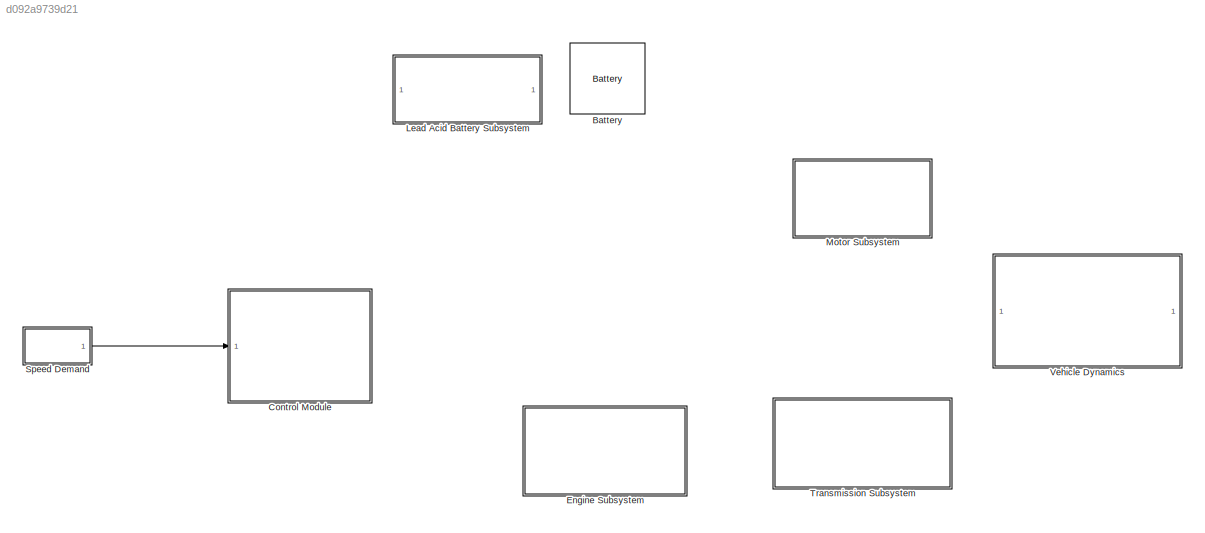
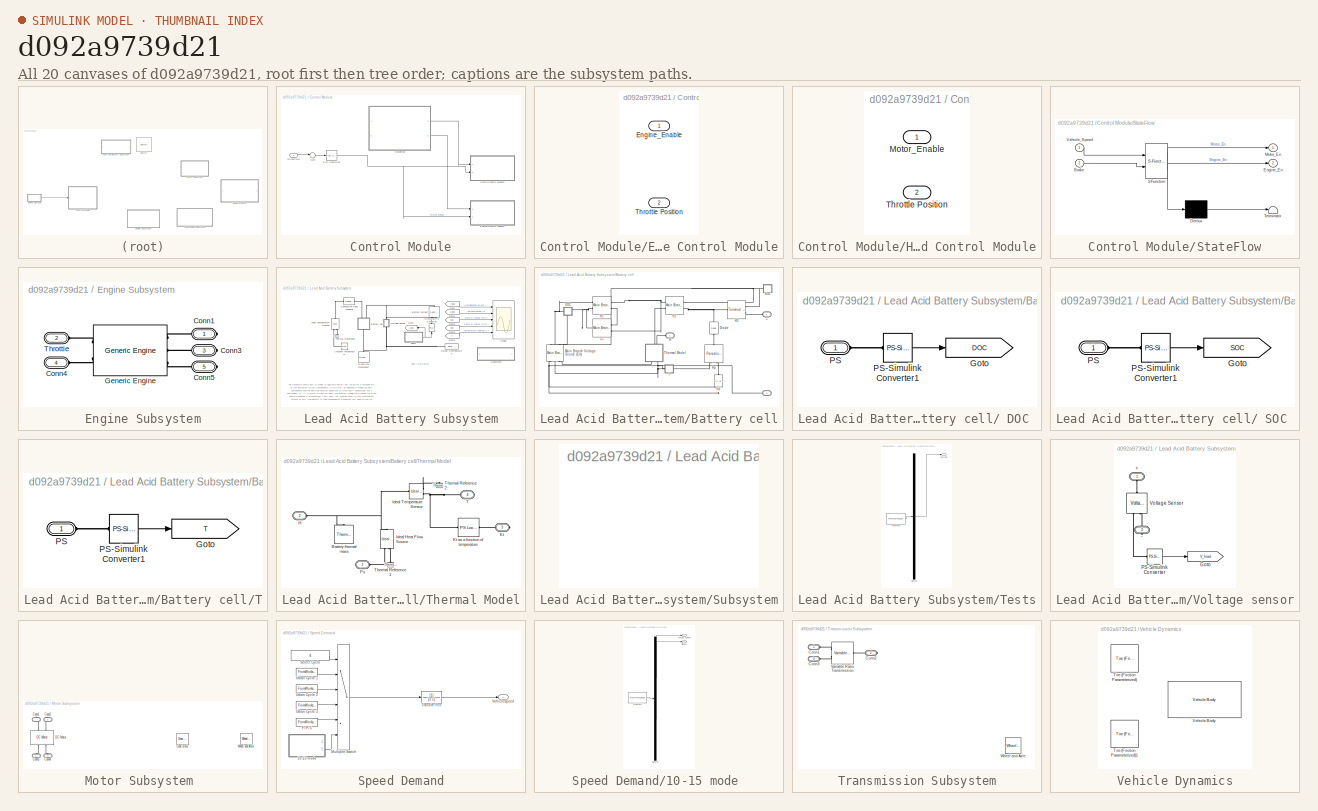
[diagram: thumbnail index - all 20 canvases of the model, root first then tree order]
MODEL slx_d092a9739d21
KIND model
BLOCK [Reference] Battery  REF=electricdrivelib/Extra Sources/Battery
  BatType = Nickel-Metal-Hydride
  Batt_Tr = 30
  Dis_Char = off
  Dis_rate = 1.3
  FullV = 1.4136
  MaxQ = 7
  NomQ = 6.5
  NomV = 1.2
  Normal_OP = 6.25
  Ports = [0, 1, 0, 0, 0, 2]
  PresetModel = on
  R = 0.0018462
  SOC = 100
  ShowDetailedParameters = off
  SourceBlock = electricdrivelib/Extra Sources/Battery
  SourceType = Battery
  Units = Time
  current = [6.5 13 32.5]
  expZone = [1.3017         1.3]
BLOCK [SubSystem] Control Module
  FunctionWithSeparateData = off
  MaskHideContents = off
  MinAlgLoopOccurrences = off
  Opaque = off
  Ports = [1]
  PropExecContextOutsideSubsystem = off
  RTWSystemCode = Auto
  RequestExecContextInheritance = off
BLOCK [Inport] Control Module/DriveCycle
  IconDisplay = Port number
BLOCK [SubSystem] Control Module/Engine Control Module
  FunctionWithSeparateData = off
  MaskHideContents = off
  MinAlgLoopOccurrences = off
  Opaque = off
  Ports = [2]
  PropExecContextOutsideSubsystem = off
  RTWSystemCode = Auto
  RequestExecContextInheritance = off
BLOCK [Inport] Control Module/Engine Control Module/Engine_Enable
  IconDisplay = Port number
BLOCK [Inport] Control Module/Engine Control Module/Throttle Position
  IconDisplay = Port number
  Port = 2
BLOCK [SubSystem] Control Module/Hybrid Control Module
  FunctionWithSeparateData = off
  MaskHideContents = off
  MinAlgLoopOccurrences = off
  Opaque = off
  Ports = [2]
  PropExecContextOutsideSubsystem = off
  RTWSystemCode = Auto
  RequestExecContextInheritance = off
BLOCK [Inport] Control Module/Hybrid Control Module/Motor_Enable
  IconDisplay = Port number
BLOCK [Inport] Control Module/Hybrid Control Module/Throttle Position
  IconDisplay = Port number
  Port = 2
BLOCK [Reference] Control Module/PID Controller  REF=simulink/Continuous/PID Controller
  AntiWindupMode = none
  Controller = PID
  D = 0
  DOutDataTypeStr = Inherit: Inherit via internal rule
  DOutMax = []
  DOutMin = []
  DParamDataTypeStr = Inherit: Inherit via internal rule
  DParamMax = []
  DParamMin = []
  ExternalReset = none
  FilterContinuousStateAttributes = ''
  FilterMethod = Forward Euler
  FilterOutDataTypeStr = Inherit: Inherit via internal rule
  FilterOutMax = []
  FilterOutMin = []
  FilterRTWStateStorageClass = Auto
  FilterStateMustResolveToSignalObject = off
  Form = Parallel
  I = 1
  IOutDataTypeStr = Inherit: Inherit via internal rule
  IOutMax = []
  IOutMin = []
  IParamDataTypeStr = Inherit: Inherit via internal rule
  IParamMax = []
  IParamMin = []
  IgnoreLimit = off
  InitialConditionForFilter = 0
  InitialConditionForIntegrator = 0
  InitialConditionSource = internal
  IntegratorContinuousStateAttributes = ''
  IntegratorMethod = Forward Euler
  IntegratorOutDataTypeStr = Inherit: Inherit via internal rule
  IntegratorOutMax = []
  IntegratorOutMin = []
  IntegratorRTWStateStorageClass = Auto
  IntegratorStateMustResolveToSignalObject = off
  Kb = 1
  KbOutDataTypeStr = Inherit: Inherit via internal rule
  KbOutMax = []
  KbOutMin = []
  KbParamDataTypeStr = Inherit: Inherit via internal rule
  KbParamMax = []
  KbParamMin = []
  Kt = 1
  KtOutDataTypeStr = Inherit: Inherit via internal rule
  KtOutMax = []
  KtOutMin = []
  KtParamDataTypeStr = Inherit: Inherit via internal rule
  KtParamMax = []
  KtParamMin = []
  LimitOutput = off
  LinearizeAsGain = on
  LockScale = off
  LowerSaturationLimit = -inf
  N = 100
  NOutDataTypeStr = Inherit: Inherit via internal rule
  NOutMax = []
  NOutMin = []
  NParamDataTypeStr = Inherit: Inherit via internal rule
  NParamMax = []
  NParamMin = []
  P = 1
  POutDataTypeStr = Inherit: Inherit via internal rule
  POutMax = []
  POutMin = []
  PParamDataTypeStr = Inherit: Inherit via internal rule
  PParamMax = []
  PParamMin = []
  Ports = [1, 1]
  RndMeth = Floor
  SampleTime = 1
  SaturateOnIntegerOverflow = off
  SaturationOutDataTypeStr = Inherit: Same as input
  SaturationOutMax = []
  SaturationOutMin = []
  SourceBlock = simulink/Continuous/PID Controller
  SourceType = PID 1dof
  SumAccumDataTypeStr = Inherit: Inherit via internal rule
  SumDAccumDataTypeStr = Inherit: Inherit via internal rule
  SumDOutDataTypeStr = Inherit: Inherit via internal rule
  SumDOutMax = []
  SumDOutMin = []
  SumI1AccumDataTypeStr = Inherit: Inherit via internal rule
  SumI1OutDataTypeStr = Inherit: Inherit via internal rule
  SumI1OutMax = []
  SumI1OutMin = []
  SumI2AccumDataTypeStr = Inherit: Inherit via internal rule
  SumI2OutDataTypeStr = Inherit: Inherit via internal rule
  SumI2OutMax = []
  SumI2OutMin = []
  SumI3AccumDataTypeStr = Inherit: Inherit via internal rule
  SumI3OutDataTypeStr = Inherit: Inherit via internal rule
  SumI3OutMax = []
  SumI3OutMin = []
  SumOutDataTypeStr = Inherit: Inherit via internal rule
  SumOutMax = []
  SumOutMin = []
  TimeDomain = Continuous-time
  TrackingMode = off
  UpperSaturationLimit = inf
  ZeroCross = on
BLOCK [SubSystem] Control Module/StateFlow
  ErrorFcn = Stateflow.Translate.translate
  FunctionWithSeparateData = off
  MaskHideContents = off
  MinAlgLoopOccurrences = off
  Opaque = off
  PermitHierarchicalResolution = ExplicitOnly
  Ports = [2, 2]
  PropExecContextOutsideSubsystem = off
  RTWSystemCode = Auto
  RequestExecContextInheritance = off
  SFBlockType = Chart
  TreatAsAtomicUnit = on
BLOCK [Demux] Control Module/StateFlow/ Demux 
  Outputs = 1
  Ports = [1, 1]
BLOCK [S-Function] Control Module/StateFlow/ SFunction 
  EnableBusSupport = off
  FunctionName = sf_sfun
  PortCounts = [2 3]
  Ports = [2, 3]
  Tag = Stateflow S-Function System_2nd_HybridMotorcycle_02252014 1
BLOCK [Terminator] Control Module/StateFlow/ Terminator 
BLOCK [Inport] Control Module/StateFlow/Brake
  IconDisplay = Port number
  Port = 2
BLOCK [Outport] Control Module/StateFlow/Engine_En
  IconDisplay = Port number
  Port = 2
BLOCK [Outport] Control Module/StateFlow/Motor_En
  IconDisplay = Port number
BLOCK [Inport] Control Module/StateFlow/Vehicle_Speed
  IconDisplay = Port number
BLOCK [Sum] Control Module/Sum
  IconShape = round
  InputSameDT = off
  Inputs = |++
  OutDataTypeStr = Inherit: Inherit via internal rule
  Ports = [2, 1]
  SaturateOnIntegerOverflow = off
BLOCK [SubSystem] Engine Subsystem
  FunctionWithSeparateData = off
  MaskHideContents = off
  MinAlgLoopOccurrences = off
  Opaque = off
  Ports = [0, 0, 0, 0, 0, 2, 3]
  PropExecContextOutsideSubsystem = off
  RTWSystemCode = Auto
  RequestExecContextInheritance = off
BLOCK [PMIOPort] Engine Subsystem/Conn1
  Port = 1
  Side = Right
BLOCK [PMIOPort] Engine Subsystem/Conn3
  Port = 3
  Side = Right
BLOCK [PMIOPort] Engine Subsystem/Conn4
  Port = 4
  Side = Left
BLOCK [PMIOPort] Engine Subsystem/Conn5
  Port = 5
  Side = Right
BLOCK [Reference] Engine Subsystem/Generic Engine  REF=sdl_lib/Engines/Generic Engine
  ClassName = generic_engine
  ComponentPath = sdl.engines.generic_engine
  ComponentVariantNames = generic_engine
  ComponentVariants = sdl.engines.generic_engine
  LocalVarLogging = []
  P_max = 1.5e+5
  P_max_unit = W
  Ports = [0, 0, 0, 0, 0, 2, 3]
  SchemaVersion = 1
  SourceBlock = sdl_lib/Engines/Generic Engine
  SourceFile = sdl.engines.generic_engine
  SourceType = Generic Engine
  T0 = 0
  T0_unit = 1
  bmep_tab = [ 0 250 500 625 750 1000 1.15e+3 1.25e+3 ]
  bmep_tab_unit = kPa
  bsfc_tab = [ 410 380 300 280 270 290 320 380; 410 370 290 270 260 270 285 320; 415 380 290 275 265 270 270 300; 420 390 310 290 285 280 280 285; 430 410 340 320 310 300 310 320; 450 430 370 340 330 330 350 380 ]
  bsfc_tab_unit = g/hr/kW
  displaced_volume = 400
  displaced_volume_unit = cm^3
  engine_type = 1
  engine_type_unit = 1
  fc_interp_method = 1
  fc_interp_method_unit = 1
  fc_model = 1
  fc_model_unit = 1
  fc_per_rev = 25
  fc_per_rev_unit = mg/rev
  fc_tab = [ 0.5 0.9 1.4 1.6 1.9 2.7 3.4 4.4; 1 1.7 2.7 3.1 3.6 5 6 7.4; 1.4 2.7 4 4.8 5.6 7.5 8.5 10.5; 2 3.6 5.8 6.7 8 10.4 11.7 13.3; 2.5 4.8 7.9 9.4 10.8 14 16.2 18.6; 3.1 6 10.3 11.9 13.8 18.4 22 26.5 ]
  fc_tab_unit = g/s
  fc_trq_tab = [ 0 80 160 200 240 320 360 400 ]
  fc_trq_tab_unit = N*m
  fc_w_tab = [ 1000 2e+3 3e+3 4e+3 5e+3 6e+3 ]
  fc_w_tab_unit = rpm
  idle_speed = 0
  idle_speed_reference = 1000
  idle_speed_reference_unit = rpm
  idle_speed_unit = 1
  idle_w_thr = 1
  idle_w_thr_unit = rpm
  inertia = 1
  inertia_unit = kg*m^2
  initial_velocity = 800
  initial_velocity_unit = rpm
  interp_method = 1
  interp_method_unit = 1
  model_inertia = 0
  model_inertia_unit = 1
  model_parameterization = 1
  model_parameterization_unit = 1
  model_time_constant = 0
  model_time_constant_unit = 1
  pwr_tab = [ 2e+4 4e+4 7.8e+4 1.2e+5 1.45e+5 1.48e+5 1.25e+5 6e+4 ]
  pwr_tab_unit = W
  rev_per_cycle = 2
  rev_per_cycle_unit = 1
  tau_controller = 1
  tau_controller_unit = s
  time_constant = 0.2
  time_constant_unit = s
  trq_tab = [ 380 380 380 380 350 280 200 80 ]
  trq_tab_unit = N*m
  w_P_max = 4.5e+3
  w_P_max_unit = rpm
  w_max = 6e+3
  w_max_unit = rpm
  w_min = 500
  w_min_unit = rpm
  w_tab = [ 500 1000 2e+3 3e+3 4e+3 5e+3 6e+3 7e+3 ]
  w_tab_unit = rpm
  w_thr = 100
  w_thr_unit = rpm
BLOCK [PMIOPort] Engine Subsystem/Throttle
  Port = 2
  Side = Left
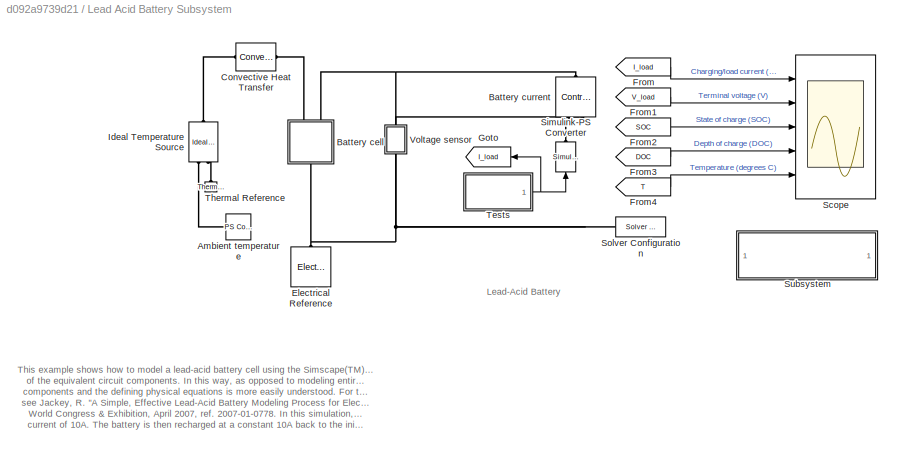
BLOCK [SubSystem] Lead Acid Battery Subsystem
  FunctionWithSeparateData = off
  MaskHideContents = off
  MinAlgLoopOccurrences = off
  Opaque = off
  Ports = []
  PropExecContextOutsideSubsystem = off
  RTWSystemCode = Auto
  RequestExecContextInheritance = off
BLOCK [Reference] Lead Acid Battery Subsystem/Ambient temperature  REF=fl_lib/Physical Signals/Sources/PS Constant
  ClassName = ps_constant
  ComponentPath = foundation.physical_signal.sources.constant
  ComponentVariantNames = constant
  ComponentVariants = foundation.physical_signal.sources.constant
  LocalVarLogging = []
  Ports = [0, 0, 0, 0, 0, 0, 1]
  SchemaVersion = 1
  SourceBlock = fl_lib/Physical Signals/Sources/PS Constant
  SourceFile = foundation.physical_signal.sources.constant
  SourceType = PS Constant
  constant = 273+25
  constant_unit = 1
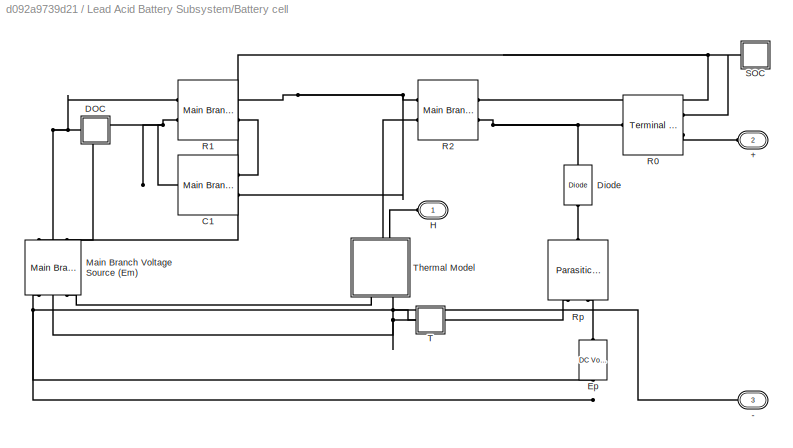
BLOCK [SubSystem] Lead Acid Battery Subsystem/Battery cell
  FunctionWithSeparateData = off
  MaskHideContents = off
  MinAlgLoopOccurrences = off
  Opaque = off
  Ports = [0, 0, 0, 0, 0, 2, 1]
  PropExecContextOutsideSubsystem = off
  RTWSystemCode = Auto
  RequestExecContextInheritance = off
BLOCK [SubSystem] Lead Acid Battery Subsystem/Battery cell/ DOC 
  FunctionWithSeparateData = off
  MaskHideContents = off
  MinAlgLoopOccurrences = off
  Opaque = off
  Ports = [0, 0, 0, 0, 0, 1]
  PropExecContextOutsideSubsystem = off
  RTWSystemCode = Auto
  RequestExecContextInheritance = off
BLOCK [Goto] Lead Acid Battery Subsystem/Battery cell/ DOC /Goto
  GotoTag = DOC
  TagVisibility = global
BLOCK [PMIOPort] Lead Acid Battery Subsystem/Battery cell/ DOC /PS
  Port = 1
  Side = Left
BLOCK [Reference] Lead Acid Battery Subsystem/Battery cell/ DOC /PS-Simulink Converter1  REF=nesl_utility/PS-Simulink
Converter
  AffineConversion = off
  Frequencies = []
  LeftPortType = input
  PhysicalDomain = network_engine_domain
  Ports = [0, 1, 0, 0, 0, 1]
  PseudoPeriodic = off
  RightPortType = output
  SourceBlock = nesl_utility/PS-Simulink\nConverter
  SourceType = PS-Simulink\nConverter
  SubClassName = ps_output
  Unit = 1
BLOCK [SubSystem] Lead Acid Battery Subsystem/Battery cell/ SOC 
  FunctionWithSeparateData = off
  MaskHideContents = off
  MinAlgLoopOccurrences = off
  Opaque = off
  Ports = [0, 0, 0, 0, 0, 1]
  PropExecContextOutsideSubsystem = off
  RTWSystemCode = Auto
  RequestExecContextInheritance = off
BLOCK [Goto] Lead Acid Battery Subsystem/Battery cell/ SOC /Goto
  GotoTag = SOC
  TagVisibility = global
BLOCK [PMIOPort] Lead Acid Battery Subsystem/Battery cell/ SOC /PS
  Port = 1
  Side = Left
BLOCK [Reference] Lead Acid Battery Subsystem/Battery cell/ SOC /PS-Simulink Converter1  REF=nesl_utility/PS-Simulink
Converter
  AffineConversion = off
  Frequencies = []
  LeftPortType = input
  PhysicalDomain = network_engine_domain
  Ports = [0, 1, 0, 0, 0, 1]
  PseudoPeriodic = off
  RightPortType = output
  SourceBlock = nesl_utility/PS-Simulink\nConverter
  SourceType = PS-Simulink\nConverter
  SubClassName = ps_output
  Unit = 1
BLOCK [PMIOPort] Lead Acid Battery Subsystem/Battery cell/+
  Port = 2
  Side = Left
  Tag = PMCPort
BLOCK [PMIOPort] Lead Acid Battery Subsystem/Battery cell/-
  Port = 3
  Side = Right
  Tag = PMCPort
BLOCK [Reference] Lead Acid Battery Subsystem/Battery cell/C1  REF=LeadAcidBattery_lib/Main Branch
Capacitance, C1
  ClassName = mbCapacitance
  Cmin = 1e-5
  Cmin_unit = F
  ComponentPath = LeadAcidBattery.C1
  ComponentVariantNames = C1
  ComponentVariants = LeadAcidBattery.C1
  LocalVarDescs = |Current through variable|Voltage across variable|Charge variable
  LocalVarLogging = [0 0 0]
  LocalVarNames = |i|v|Q
  Ports = [0, 0, 0, 0, 0, 2, 1]
  Q_Log = off
  SchemaVersion = 1
  SourceBlock = LeadAcidBattery_lib/Main Branch\nCapacitance, C1
  SourceFile = LeadAcidBattery.C1
  SourceType = Main Branch\nCapacitance, C1
  Tau1 = Tau1
  Tau1_unit = s
  i_Log = off
  v_Log = off
BLOCK [Reference] Lead Acid Battery Subsystem/Battery cell/Diode  REF=fl_lib/Electrical/Electrical Elements/Diode
  ClassName = pwl_diode
  ComponentPath = foundation.electrical.elements.pwl_diode
  ComponentVariantNames = pwl_diode
  ComponentVariants = foundation.electrical.elements.pwl_diode
  Goff = 1e-08
  Goff_unit = 1/Ohm
  LocalVarDescs = |Diode current (A)|Voltage across diode (V)|Power (W)
  LocalVarLogging = [0 0 0]
  LocalVarNames = |current|voltage|power
  Ports = [0, 0, 0, 0, 0, 1, 1]
  Ron = 0.3
  Ron_unit = Ohm
  SchemaVersion = 1
  SourceBlock = fl_lib/Electrical/Electrical Elements/Diode
  SourceFile = foundation.electrical.elements.pwl_diode
  SourceType = Diode
  Vf = 0.6
  Vf_unit = V
  i_Log = off
  v_Log = off
BLOCK [Reference] Lead Acid Battery Subsystem/Battery cell/Ep  REF=fl_lib/Electrical/Electrical Sources/DC Voltage Source
  ClassName = dc_voltage_source
  ComponentPath = foundation.electrical.sources.dc_voltage
  ComponentVariantNames = dc_voltage
  ComponentVariants = foundation.electrical.sources.dc_voltage
  LocalVarDescs = |Current (A)|Voltage (V)|Power (W)
  LocalVarLogging = [0 0 0]
  LocalVarNames = |current|voltage|power
  Ports = [0, 0, 0, 0, 0, 1, 1]
  SchemaVersion = 1
  SourceBlock = fl_lib/Electrical/Electrical Sources/DC Voltage Source
  SourceFile = foundation.electrical.sources.dc_voltage
  SourceType = DC Voltage Source
  i_Log = off
  v0 = Ep
  v0_unit = V
  v_Log = off
BLOCK [PMIOPort] Lead Acid Battery Subsystem/Battery cell/H
  Port = 1
  Side = Left
  Tag = PMCPort
BLOCK [Reference] Lead Acid Battery Subsystem/Battery cell/Main Branch Voltage Source (Em)  REF=LeadAcidBattery_lib/Main Branch Voltage
Source, Em
  C0 = Costar
  C0_unit = s*A
  ClassName = mbVoltageSource
  ComponentPath = LeadAcidBattery.Em
  ComponentVariantNames = Em
  ComponentVariants = LeadAcidBattery.Em
  Em0 = Emo
  Em0_unit = V
  Iavg_Log = off
  Istar = Istar
  Istar_unit = A
  Kc = Kc
  Kc_unit = 1
  Ke = Ke
  Ke_unit = V/K
  LocalVarDescs = |Current through variable|Voltage across variable|usable battery capacity|total battery capacity|battery charge|average current given by (I/(Ts+1))
  LocalVarLogging = [0 0 0 0 0 0]
  LocalVarNames = |i|v|cap_u|cap_t|Q|Iavg
  Ports = [0, 0, 0, 0, 0, 3, 3]
  Qe_Log = off
  Qinit = Qe_init
  Qinit_unit = s*A
  SchemaVersion = 1
  SourceBlock = LeadAcidBattery_lib/Main Branch Voltage\nSource, Em
  SourceFile = LeadAcidBattery.Em
  SourceType = Main Branch Voltage\nSource, Em
  Tau1 = Tau1
  Tau1_unit = s
  delta = delta
  delta_unit = 1
  i_Log = off
  v_Log = off
BLOCK [Reference] Lead Acid Battery Subsystem/Battery cell/R0  REF=LeadAcidBattery_lib/Terminal Resistance,
R0
  A0 = Ao
  A0_unit = 1
  ClassName = terminalResistance
  ComponentPath = LeadAcidBattery.R0
  ComponentVariantNames = R0
  ComponentVariants = LeadAcidBattery.R0
  LocalVarDescs = |Current through variable|Voltage across variable
  LocalVarLogging = [0 0]
  LocalVarNames = |i|v
  Ports = [0, 0, 0, 0, 0, 2, 1]
  R00 = Roo
  R00_unit = Ohm
  SchemaVersion = 1
  SourceBlock = LeadAcidBattery_lib/Terminal Resistance,\nR0
  SourceFile = LeadAcidBattery.R0
  SourceType = Terminal Resistance,\nR0
  i_Log = off
  v_Log = off
BLOCK [Reference] Lead Acid Battery Subsystem/Battery cell/R1  REF=LeadAcidBattery_lib/Main Branch
Resistance, R1
  ClassName = R1
  ComponentPath = LeadAcidBattery.R1
  ComponentVariantNames = R1
  ComponentVariants = LeadAcidBattery.R1
  DOC_min = 1e-006
  DOC_min_unit = 1
  LocalVarDescs = |Current through variable|Voltage across variable
  LocalVarLogging = [0 0]
  LocalVarNames = |i|v
  Ports = [0, 0, 0, 0, 0, 2, 2]
  R10 = R10
  R10_unit = Ohm
  SchemaVersion = 1
  SourceBlock = LeadAcidBattery_lib/Main Branch\nResistance, R1
  SourceFile = LeadAcidBattery.R1
  SourceType = Main Branch\nResistance, R1
  i_Log = off
  v_Log = off
BLOCK [Reference] Lead Acid Battery Subsystem/Battery cell/R2  REF=LeadAcidBattery_lib/Main Branch
Resistance, R2
  A21 = A21
  A21_unit = 1
  A22 = A22
  A22_unit = 1
  ClassName = mbResistance2
  ComponentPath = LeadAcidBattery.R2
  ComponentVariantNames = R2
  ComponentVariants = LeadAcidBattery.R2
  Istar = Istar
  Istar_unit = A
  LocalVarDescs = |Current through variable|Voltage across variable
  LocalVarLogging = [0 0]
  LocalVarNames = |i|v
  Ports = [0, 0, 0, 0, 0, 2, 2]
  R20 = R20
  R20_unit = Ohm
  SchemaVersion = 1
  SourceBlock = LeadAcidBattery_lib/Main Branch\nResistance, R2
  SourceFile = LeadAcidBattery.R2
  SourceType = Main Branch\nResistance, R2
  i_Log = off
  v_Log = off
BLOCK [Reference] Lead Acid Battery Subsystem/Battery cell/Rp  REF=LeadAcidBattery_lib/Parasitic Branch
Resistance, Rp
  Ap = Ap
  Ap_unit = 1
  ClassName = pbResistance
  ComponentPath = LeadAcidBattery.Rp
  ComponentVariantNames = Rp
  ComponentVariants = LeadAcidBattery.Rp
  Gp0 = Gpo
  Gp0_unit = 1/Ohm
  LocalVarDescs = |Current through variable|Voltage across variable|average voltage given by (V/(Ts+1))
  LocalVarLogging = [0 0 0]
  LocalVarNames = |i|v|Vavg
  Ports = [0, 0, 0, 0, 0, 1, 2]
  SchemaVersion = 1
  SourceBlock = LeadAcidBattery_lib/Parasitic Branch\nResistance, Rp
  SourceFile = LeadAcidBattery.Rp
  SourceType = Parasitic Branch\nResistance, Rp
  Tf = theta_f
  Tf_unit = C
  Vp0 = Vpo
  Vp0_unit = V
  i_Log = off
  v_Log = off
BLOCK [SubSystem] Lead Acid Battery Subsystem/Battery cell/T
  FunctionWithSeparateData = off
  MaskHideContents = off
  MinAlgLoopOccurrences = off
  Opaque = off
  Ports = [0, 0, 0, 0, 0, 1]
  PropExecContextOutsideSubsystem = off
  RTWSystemCode = Auto
  RequestExecContextInheritance = off
BLOCK [Goto] Lead Acid Battery Subsystem/Battery cell/T/Goto
  GotoTag = T
  TagVisibility = global
BLOCK [PMIOPort] Lead Acid Battery Subsystem/Battery cell/T/PS
  Port = 1
  Side = Left
BLOCK [Reference] Lead Acid Battery Subsystem/Battery cell/T/PS-Simulink Converter1  REF=nesl_utility/PS-Simulink
Converter
  AffineConversion = on
  Frequencies = []
  LeftPortType = input
  PhysicalDomain = network_engine_domain
  Ports = [0, 1, 0, 0, 0, 1]
  PseudoPeriodic = off
  RightPortType = output
  SourceBlock = nesl_utility/PS-Simulink\nConverter
  SourceType = PS-Simulink\nConverter
  SubClassName = ps_output
  Unit = C
BLOCK [SubSystem] Lead Acid Battery Subsystem/Battery cell/Thermal Model
  FunctionWithSeparateData = off
  MaskHideContents = off
  MinAlgLoopOccurrences = off
  Opaque = off
  Ports = [0, 0, 0, 0, 0, 2, 2]
  PropExecContextOutsideSubsystem = off
  RTWSystemCode = Auto
  RequestExecContextInheritance = off
BLOCK [Reference] Lead Acid Battery Subsystem/Battery cell/Thermal Model/Battery thermal mass  REF=fl_lib/Thermal/Thermal Elements/Thermal Mass
  ClassName = thermal_mass
  ComponentPath = foundation.thermal.elements.mass
  ComponentVariantNames = mass
  ComponentVariants = foundation.thermal.elements.mass
  LocalVarDescs = |Heat flow (J/s)|Mass temperature (K)
  LocalVarLogging = [0 0]
  LocalVarNames = |heat_flow|temperature
  Ports = [0, 0, 0, 0, 0, 1]
  Q_Log = off
  SchemaVersion = 1
  SourceBlock = fl_lib/Thermal/Thermal Elements/Thermal Mass
  SourceFile = foundation.thermal.elements.mass
  SourceType = Thermal Mass
  init_temp = theta_init+273
  init_temp_unit = K
  mass = 1
  mass_unit = kg
  sp_heat = Ctheta
  sp_heat_unit = J/kg/K
BLOCK [PMIOPort] Lead Acid Battery Subsystem/Battery cell/Thermal Model/H
  Port = 2
  Side = Left
  Tag = PMCPort
BLOCK [Reference] Lead Acid Battery Subsystem/Battery cell/Thermal Model/Ideal Heat Flow Source  REF=fl_lib/Thermal/Thermal Sources/Ideal Heat Flow
Source
  ClassName = heat_flow_src
  ComponentPath = foundation.thermal.sources.heat_flow
  ComponentVariantNames = heat_flow
  ComponentVariants = foundation.thermal.sources.heat_flow
  LocalVarDescs = |Heat flow through the source (J/s)|Temperature differential across the source (K)
  LocalVarLogging = [0 0]
  LocalVarNames = |heat_flow|T_differential
  Ports = [0, 0, 0, 0, 0, 1, 2]
  Q_Log = off
  SchemaVersion = 1
  SourceBlock = fl_lib/Thermal/Thermal Sources/Ideal Heat Flow\nSource
  SourceFile = foundation.thermal.sources.heat_flow
  SourceType = Ideal Heat Flow\nSource
  T_Log = off
BLOCK [Reference] Lead Acid Battery Subsystem/Battery cell/Thermal Model/Ideal Temperature Sensor  REF=fl_lib/Thermal/Thermal Sensors/Ideal Temperature
Sensor
  ClassName = sensor_temperature
  ComponentPath = foundation.thermal.sensors.temperature
  ComponentVariantNames = temperature
  ComponentVariants = foundation.thermal.sensors.temperature
  LocalVarDescs = |Qs|Ts
  LocalVarLogging = []
  LocalVarNames = |Qs|Ts
  Ports = [0, 0, 0, 0, 0, 1, 2]
  Qs_Log = off
  SchemaVersion = 1
  SourceBlock = fl_lib/Thermal/Thermal Sensors/Ideal Temperature\nSensor
  SourceFile = foundation.thermal.sensors.temperature
  SourceType = Ideal Temperature\nSensor
  Ts_Log = off
BLOCK [PMIOPort] Lead Acid Battery Subsystem/Battery cell/Thermal Model/Kt
  Port = 3
  Side = Right
  Tag = PMCPort
BLOCK [Reference] Lead Acid Battery Subsystem/Battery cell/Thermal Model/Kt as a function of temperature  REF=fl_lib/Physical Signals/Lookup Tables/PS Lookup Table (1D)
  ClassName = ps_1d_tlu
  ComponentPath = foundation.physical_signal.lookup_tables.one_dimensional
  ComponentVariantNames = one_dimensional
  ComponentVariants = foundation.physical_signal.lookup_tables.one_dimensional
  LocalVarLogging = []
  Ports = [0, 0, 0, 0, 0, 1, 1]
  SchemaVersion = 1
  SourceBlock = fl_lib/Physical Signals/Lookup Tables/PS Lookup Table (1D)
  SourceFile = foundation.physical_signal.lookup_tables.one_dimensional
  SourceType = PS Lookup Table (1D)
  extrap_method = 1
  extrap_method_unit = 1
  interp_method = 1
  interp_method_unit = 1
  x_t = [theta_f, Kt_Temps]+273
  x_t_unit = 1
  y_t = [0 Kt]
  y_t_unit = 1
BLOCK [PMIOPort] Lead Acid Battery Subsystem/Battery cell/Thermal Model/Ps
  Port = 1
  Side = Left
  Tag = PMCPort
BLOCK [PMIOPort] Lead Acid Battery Subsystem/Battery cell/Thermal Model/T
  Port = 4
  Side = Right
  Tag = PMCPort
BLOCK [Reference] Lead Acid Battery Subsystem/Battery cell/Thermal Model/Thermal Reference1  REF=fl_lib/Thermal/Thermal Elements/Thermal Reference
  ClassName = reference_thermal
  ComponentPath = foundation.thermal.elements.reference
  ComponentVariantNames = reference
  ComponentVariants = foundation.thermal.elements.reference
  LocalVarDescs = |Q
  LocalVarLogging = []
  LocalVarNames = |Q
  Ports = [0, 0, 0, 0, 0, 1]
  Q_Log = off
  SchemaVersion = 1
  SourceBlock = fl_lib/Thermal/Thermal Elements/Thermal Reference
  SourceFile = foundation.thermal.elements.reference
  SourceType = Thermal Reference
BLOCK [Reference] Lead Acid Battery Subsystem/Battery cell/Thermal Model/Thermal Reference2  REF=fl_lib/Thermal/Thermal Elements/Thermal Reference
  ClassName = reference_thermal
  ComponentPath = foundation.thermal.elements.reference
  ComponentVariantNames = reference
  ComponentVariants = foundation.thermal.elements.reference
  LocalVarDescs = |Q
  LocalVarLogging = []
  LocalVarNames = |Q
  Ports = [0, 0, 0, 0, 0, 1]
  Q_Log = off
  SchemaVersion = 1
  SourceBlock = fl_lib/Thermal/Thermal Elements/Thermal Reference
  SourceFile = foundation.thermal.elements.reference
  SourceType = Thermal Reference
BLOCK [Reference] Lead Acid Battery Subsystem/Battery current  REF=fl_lib/Electrical/Electrical Sources/Controlled Current
Source
  ClassName = controlled_current_source
  ComponentPath = foundation.electrical.sources.controlled_current
  ComponentVariantNames = controlled_current
  ComponentVariants = foundation.electrical.sources.controlled_current
  LocalVarDescs = |Current (A)|Voltage (V)|Power (W)
  LocalVarLogging = [0 0 0]
  LocalVarNames = |current|voltage|power
  Ports = [0, 0, 0, 0, 0, 1, 2]
  SchemaVersion = 1
  SourceBlock = fl_lib/Electrical/Electrical Sources/Controlled Current\nSource
  SourceFile = foundation.electrical.sources.controlled_current
  SourceType = Controlled Current\nSource
  i_Log = off
  v_Log = off
BLOCK [Reference] Lead Acid Battery Subsystem/Convective Heat Transfer  REF=fl_lib/Thermal/Thermal Elements/Convective Heat
Transfer
  ClassName = conv_heat_transfer
  ComponentPath = foundation.thermal.elements.convection
  ComponentVariantNames = convection
  ComponentVariants = foundation.thermal.elements.convection
  LocalVarDescs = |Heat flow (J/s)|Temperature difference (K)
  LocalVarLogging = [0 0]
  LocalVarNames = |heat_flow|temperature_diff
  Ports = [0, 0, 0, 0, 0, 1, 1]
  Q_Log = off
  SchemaVersion = 1
  SourceBlock = fl_lib/Thermal/Thermal Elements/Convective Heat\nTransfer
  SourceFile = foundation.thermal.elements.convection
  SourceType = Convective Heat\nTransfer
  T_Log = off
  area = Area
  area_unit = m^2
  heat_tr_coeff = Rtheta
  heat_tr_coeff_unit = W/(m^2 * K)
BLOCK [Reference] Lead Acid Battery Subsystem/Electrical Reference  REF=fl_lib/Electrical/Electrical Elements/Electrical Reference
  ClassName = reference_electrical
  ComponentPath = foundation.electrical.elements.reference
  ComponentVariantNames = reference
  ComponentVariants = foundation.electrical.elements.reference
  LocalVarDescs = |i
  LocalVarLogging = []
  LocalVarNames = |i
  Ports = [0, 0, 0, 0, 0, 1]
  SchemaVersion = 1
  SourceBlock = fl_lib/Electrical/Electrical Elements/Electrical Reference
  SourceFile = foundation.electrical.elements.reference
  SourceType = Electrical Reference
  i_Log = off
BLOCK [From] Lead Acid Battery Subsystem/From
  GotoTag = I_load
  TagVisibility = global
BLOCK [From] Lead Acid Battery Subsystem/From1
  GotoTag = V_load
  TagVisibility = global
BLOCK [From] Lead Acid Battery Subsystem/From2
  GotoTag = SOC
  TagVisibility = global
BLOCK [From] Lead Acid Battery Subsystem/From3
  GotoTag = DOC
  TagVisibility = global
BLOCK [From] Lead Acid Battery Subsystem/From4
  GotoTag = T
  TagVisibility = global
BLOCK [Goto] Lead Acid Battery Subsystem/Goto
  GotoTag = I_load
  TagVisibility = global
BLOCK [Reference] Lead Acid Battery Subsystem/Ideal Temperature Source  REF=fl_lib/Thermal/Thermal Sources/Ideal Temperature
Source
  ClassName = temperature_src
  ComponentPath = foundation.thermal.sources.temperature
  ComponentVariantNames = temperature
  ComponentVariants = foundation.thermal.sources.temperature
  LocalVarDescs = |Heat flow rate through the source (J/s)|Temperature differential across the source (K)
  LocalVarLogging = [0 0]
  LocalVarNames = |heat_flow|T_differential
  Ports = [0, 0, 0, 0, 0, 1, 2]
  Q_Log = off
  SchemaVersion = 1
  SourceBlock = fl_lib/Thermal/Thermal Sources/Ideal Temperature\nSource
  SourceFile = foundation.thermal.sources.temperature
  SourceType = Ideal Temperature\nSource
  T_Log = off
BLOCK [Scope] Lead Acid Battery Subsystem/Scope
  DataFormat = StructureWithTime
  Floating = off
  LimitDataPoints = off
  NumInputPorts = 5
  Ports = [5]
  SampleTime = 0
  ShowLegends = off
  TimeRange = 36000
  YMax = 12~3~1~1~40
  YMin = -12~1.5~0~0~20
BLOCK [Reference] Lead Acid Battery Subsystem/Simulink-PS Converter  REF=nesl_utility/Simulink-PS
Converter
  AffineConversion = off
  Frequencies = []
  InputFilterTimeConstant = .001
  InputFiltering = off
  LeftPortType = input
  NoiseDistribution = none
  NoiseParameters = []
  PhysicalDomain = network_engine_domain
  Ports = [1, 0, 0, 0, 0, 0, 1]
  PseudoPeriodic = off
  RightPortType = output
  SimscapeFilterOrder = 1
  SourceBlock = nesl_utility/Simulink-PS\nConverter
  SourceType = Simulink-PS\nConverter
  SubClassName = ps_input
  UdotUserProvided = 0
  Unit = A
BLOCK [Reference] Lead Acid Battery Subsystem/Solver Configuration  REF=nesl_utility/Solver
Configuration
  Accelerate = off
  DelaysMemoryBudget = 1024
  DoDC = off
  DoFixedCost = off
  EnableSwitchedLinearOptims = on
  FrequencyDomain = off
  Harmonics = []
  LeftPortType = input
  LinearAlgebra = Sparse
  LocalSolverChoice = NE_BACKWARD_EULER_ADVANCER
  LocalSolverSampleTime = .001
  MaxModeIter = 2
  MaxNonlinIter = 3
  PhysicalDomain = network_engine_domain
  Ports = [0, 0, 0, 0, 0, 0, 1]
  Profile = off
  ResidualTolerance = 1e-9
  RightPortType = generic
  SimulateNoise = off
  SourceBlock = nesl_utility/Solver\nConfiguration
  SourceType = Solver\nConfiguration
  SubClassName = solver
  Tones = []
  UseCCode = off
  UseLocalSampling = off
  UseLocalSolver = off
  UseNewInitialization = off
BLOCK [SubSystem] Lead Acid Battery Subsystem/Subsystem
  FunctionWithSeparateData = off
  MaskHideContents = off
  MinAlgLoopOccurrences = off
  Opaque = off
  OpenFcn = open('LeadAcidBattery_lib')
  Ports = []
  PropExecContextOutsideSubsystem = off
  RTWSystemCode = Auto
  RequestExecContextInheritance = off
BLOCK [SubSystem] Lead Acid Battery Subsystem/Tests
  ClipboardFcn = sigbuilder_block('clipboard');
  CloseFcn = sigbuilder_block('close');
  ContinueFcn = sigbuilder_block('continue')
  CopyFcn = sigbuilder_block('copy');
  DeleteFcn = sigbuilder_block('delete');
  FunctionWithSeparateData = off
  LoadFcn = sigbuilder_block('load');
  MaskHideContents = on
  MinAlgLoopOccurrences = off
  ModelCloseFcn = sigbuilder_block('modelClose');
  NameChangeFcn = sigbuilder_block('namechange');
  Opaque = off
  OpenFcn = sigbuilder_block('open',[5.58621 27.931 980.69 471.724 ]);
  PauseFcn = sigbuilder_block('pause')
  Ports = [0, 1]
  PreSaveFcn = sigbuilder_block('preSave');
  PropExecContextOutsideSubsystem = off
  RTWSystemCode = Auto
  RequestExecContextInheritance = off
  StartFcn = sigbuilder_block('start');
  StopFcn = sigbuilder_block('stop');
  Tag = STV Subsys
BLOCK [Outport] Lead Acid Battery Subsystem/Tests/Current
  IconDisplay = Port number
  Tag = STV Outport
BLOCK [Demux] Lead Acid Battery Subsystem/Tests/Demux
  Outputs = 1
  Ports = [1, 1]
  Tag = STV Demux
BLOCK [FromWorkspace] Lead Acid Battery Subsystem/Tests/FromWs
  SampleTime = 0
  Tag = STV FromWs
  VariableName = tuvar
  ZeroCross = on
BLOCK [Reference] Lead Acid Battery Subsystem/Thermal Reference  REF=fl_lib/Thermal/Thermal Elements/Thermal Reference
  ClassName = reference_thermal
  ComponentPath = foundation.thermal.elements.reference
  ComponentVariantNames = reference
  ComponentVariants = foundation.thermal.elements.reference
  LocalVarDescs = |Q
  LocalVarLogging = []
  LocalVarNames = |Q
  Ports = [0, 0, 0, 0, 0, 1]
  Q_Log = off
  SchemaVersion = 1
  SourceBlock = fl_lib/Thermal/Thermal Elements/Thermal Reference
  SourceFile = foundation.thermal.elements.reference
  SourceType = Thermal Reference
BLOCK [SubSystem] Lead Acid Battery Subsystem/Voltage sensor
  FunctionWithSeparateData = off
  MaskHideContents = off
  MinAlgLoopOccurrences = off
  Opaque = off
  Ports = [0, 0, 0, 0, 0, 1, 1]
  PropExecContextOutsideSubsystem = off
  RTWSystemCode = Auto
  RequestExecContextInheritance = off
BLOCK [PMIOPort] Lead Acid Battery Subsystem/Voltage sensor/+
  Port = 1
  Side = Left
BLOCK [PMIOPort] Lead Acid Battery Subsystem/Voltage sensor/-
  Port = 2
  Side = Right
BLOCK [Goto] Lead Acid Battery Subsystem/Voltage sensor/Goto
  GotoTag = V_load
  TagVisibility = global
BLOCK [Reference] Lead Acid Battery Subsystem/Voltage sensor/PS-Simulink Converter  REF=nesl_utility/PS-Simulink
Converter
  AffineConversion = off
  Frequencies = []
  LeftPortType = input
  PhysicalDomain = network_engine_domain
  Ports = [0, 1, 0, 0, 0, 1]
  PseudoPeriodic = off
  RightPortType = output
  SourceBlock = nesl_utility/PS-Simulink\nConverter
  SourceType = PS-Simulink\nConverter
  SubClassName = ps_output
  Unit = V
BLOCK [Reference] Lead Acid Battery Subsystem/Voltage sensor/Voltage Sensor  REF=fl_lib/Electrical/Electrical Sensors/Voltage Sensor
  ClassName = sensor_voltage
  ComponentPath = foundation.electrical.sensors.voltage
  ComponentVariantNames = voltage
  ComponentVariants = foundation.electrical.sensors.voltage
  LocalVarDescs = |i1|v1
  LocalVarLogging = []
  LocalVarNames = |i1|v1
  Ports = [0, 0, 0, 0, 0, 1, 2]
  SchemaVersion = 1
  SourceBlock = fl_lib/Electrical/Electrical Sensors/Voltage Sensor
  SourceFile = foundation.electrical.sensors.voltage
  SourceType = Voltage Sensor
  i1_Log = off
  v1_Log = off
BLOCK [SubSystem] Motor Subsystem 
  FunctionWithSeparateData = off
  MaskHideContents = off
  MinAlgLoopOccurrences = off
  Opaque = off
  Ports = [0, 0, 0, 0, 0, 2, 2]
  PropExecContextOutsideSubsystem = off
  RTWSystemCode = Auto
  RequestExecContextInheritance = off
BLOCK [PMIOPort] Motor Subsystem /Conn1
  Port = 1
  Side = Right
BLOCK [PMIOPort] Motor Subsystem /Conn2
  Port = 2
  Side = Right
BLOCK [PMIOPort] Motor Subsystem /Conn3
  Port = 3
  Side = Left
BLOCK [PMIOPort] Motor Subsystem /Conn4
  Port = 4
  Side = Left
BLOCK [Reference] Motor Subsystem /DC Motor  REF=elec_lib/Actuators & Drivers/Rotational Actuators/DC Motor
  ClassName = Simscape variant
  ComponentPath = elec.actuators.rotational.dc_motor
  ComponentVariantNames = No thermal port, Show thermal port
  ComponentVariants = elec.actuators.rotational.dc_motor, elec.actuators.rotational.dc_motor_thermal
  J = 0.01
  J_unit = g*cm^2
  Ki = 6.876e-4
  Ki_unit = N*m/A
  Kv = 7.2e-5
  Kv_unit = V/rpm
  La = 1.2e-5
  La_unit = H
  LocalVarDescs = |Current (A)|Voltage (V)|Power (W)|Electrical losses (W)|Torque (Nm)|Angular speed (rad/s)
  LocalVarLogging = [0 0 0 0 0 0]
  LocalVarNames = |current|voltage|power|i2r|torque|speed
  P_rated = 0.08
  P_rated_unit = W
  Ports = [0, 0, 0, 0, 0, 2, 2]
  Ra = 3.9
  Ra_unit = Ohm
  SchemaVersion = 1
  SourceBlock = elec_lib/Actuators & Drivers/Rotational Actuators/DC Motor
  SourceFile = elec.actuators.rotational.dc_motor
  SourceType = DC Motor
  T_stall = 2.4e-4
  T_stall_unit = N*m
  Tmeas = 25
  Tmeas_unit = C
  V_i_noload = 1.5
  V_i_noload_unit = V
  V_rated = 1.5
  V_rated_unit = V
  alpha = 0.00393
  alpha_unit = 1/K
  current_Log = off
  emf_or_torque = 1
  emf_or_torque_unit = 1
  i2r_Log = off
  i_noload = 0
  i_noload_unit = A
  initial_temperature = 25
  initial_temperature_unit = C
  lam = 0
  lam_param = 1
  lam_param_unit = 1
  lam_unit = N*m/(rad/s)
  parameterization = 1
  parameterization_unit = 1
  power_Log = off
  speed0 = 0
  speed0_unit = rpm
  speed_Log = off
  thermal_mass = 100
  thermal_mass_unit = J/K
  torque_Log = off
  voltage_Log = off
  w_max = 1.91e+4
  w_max_unit = rpm
  w_rated = 1.5e+4
  w_rated_unit = rpm
BLOCK [Reference] Motor Subsystem /Gear Box1  REF=fl_lib/Mechanical/Mechanisms/Gear Box
  ClassName = gear_box
  ComponentPath = foundation.mechanical.mechanisms.gear_box
  ComponentVariantNames = gear_box
  ComponentVariants = foundation.mechanical.mechanisms.gear_box
  LocalVarDescs = |t_in|t_out
  LocalVarLogging = [0 0]
  LocalVarNames = |t_in|t_out
  Ports = [0, 0, 0, 0, 0, 1, 1]
  SchemaVersion = 1
  SourceBlock = fl_lib/Mechanical/Mechanisms/Gear Box
  SourceFile = foundation.mechanical.mechanisms.gear_box
  SourceType = Gear Box
  ratio = 5
  ratio_unit = 1
  t_in_Log = off
  t_out_Log = off
BLOCK [Reference] Motor Subsystem /Wheel and Axle  REF=fl_lib/Mechanical/Mechanisms/Wheel and Axle
  ClassName = wheel_axle
  ComponentPath = foundation.mechanical.mechanisms.wheel_axle
  ComponentVariantNames = wheel_axle
  ComponentVariants = foundation.mechanical.mechanisms.wheel_axle
  LocalVarDescs = |t|f
  LocalVarLogging = [0 0]
  LocalVarNames = |t|f
  Ports = [0, 0, 0, 0, 0, 1, 1]
  R = 0.05
  R_unit = m
  SchemaVersion = 1
  SourceBlock = fl_lib/Mechanical/Mechanisms/Wheel and Axle
  SourceFile = foundation.mechanical.mechanisms.wheel_axle
  SourceType = Wheel and Axle
  f_Log = off
  or = 1
  or_unit = 1
  orient = 1
  orient_unit = 1
  t_Log = off
BLOCK [SubSystem] Speed Demand
  FunctionWithSeparateData = off
  MaskHideContents = off
  MinAlgLoopOccurrences = off
  Opaque = off
  Ports = [0, 1]
  PropExecContextOutsideSubsystem = off
  RTWSystemCode = Auto
  RequestExecContextInheritance = off
BLOCK [SubSystem] Speed Demand/10-15 mode 
  ClipboardFcn = sigbuilder_block('clipboard');
  CloseFcn = sigbuilder_block('close');
  ContinueFcn = sigbuilder_block('continue')
  CopyFcn = sigbuilder_block('copy');
  DeleteFcn = sigbuilder_block('delete');
  FunctionWithSeparateData = off
  LoadFcn = sigbuilder_block('load');
  MaskHideContents = on
  MinAlgLoopOccurrences = off
  ModelCloseFcn = sigbuilder_block('modelClose');
  NameChangeFcn = sigbuilder_block('namechange');
  Opaque = off
  OpenFcn = sigbuilder_block('open',[5.58621 35.3793 980.69 465.517 ]);
  PauseFcn = sigbuilder_block('pause')
  Ports = [0, 2]
  PreSaveFcn = sigbuilder_block('preSave');
  PropExecContextOutsideSubsystem = off
  RTWSystemCode = Auto
  RequestExecContextInheritance = off
  StartFcn = sigbuilder_block('start');
  StopFcn = sigbuilder_block('stop');
  Tag = STV Subsys
BLOCK [Demux] Speed Demand/10-15 mode /Demux
  Outputs = 2
  Ports = [1, 2]
  Tag = STV Demux
BLOCK [FromWorkspace] Speed Demand/10-15 mode /FromWs
  SampleTime = 0
  Tag = STV FromWs
  VariableName = tuvar
  ZeroCross = on
BLOCK [Outport] Speed Demand/10-15 mode /Signal 1
  IconDisplay = Port number
  Port = 2
  Tag = STV Outport
BLOCK [Outport] Speed Demand/10-15 mode /Target speed
  IconDisplay = Port number
  Tag = STV Outport
BLOCK [FromWorkspace] Speed Demand/FTP75
  SampleTime = 0
  VariableName = [UrbanCycle4.time Vehicle_MaxSpeed_kph/max(UrbanCycle4.SpdKph)*UrbanCycle4.SpdKph]
  ZeroCross = on
BLOCK [MultiPortSwitch] Speed Demand/Multiport Switch
  InputSameDT = off
  Inputs = 5
  Ports = [6, 1]
  SaturateOnIntegerOverflow = off
BLOCK [Constant] Speed Demand/Select Cycle
  Value = 4
BLOCK [TransferFcn] Speed Demand/Transfer Fcn
  Denominator = [3 1]
BLOCK [FromWorkspace] Speed Demand/Urban Cycle 1
  SampleTime = 0
  VariableName = [UrbanCycle1.time UrbanCycle1.SpdKph]
  ZeroCross = on
BLOCK [FromWorkspace] Speed Demand/Urban Cycle 2
  SampleTime = 0
  VariableName = [UrbanCycle2.time UrbanCycle2.SpdKph]
  ZeroCross = on
BLOCK [FromWorkspace] Speed Demand/Urban Cycle 3
  SampleTime = 0
  VariableName = [UrbanCycle3.time UrbanCycle3.SpdKph]
  ZeroCross = on
BLOCK [Outport] Speed Demand/VehicleSpeed
  IconDisplay = Port number
BLOCK [SubSystem] Transmission Subsystem
  FunctionWithSeparateData = off
  MaskHideContents = off
  MinAlgLoopOccurrences = off
  Opaque = off
  Ports = [0, 0, 0, 0, 0, 2, 1]
  PropExecContextOutsideSubsystem = off
  RTWSystemCode = Auto
  RequestExecContextInheritance = off
BLOCK [PMIOPort] Transmission Subsystem/Conn1
  Port = 1
  Side = Left
BLOCK [PMIOPort] Transmission Subsystem/Conn2
  Port = 2
  Side = Right
BLOCK [PMIOPort] Transmission Subsystem/Conn3
  Port = 3
  Side = Left
BLOCK [Reference] Transmission Subsystem/Variable Ratio Transmission  REF=sdl_lib/Couplings & Drives/Variable Ratio
Transmission
  ClassName = variable_ratio_transmission
  ComponentPath = sdl.couplings.variable_ratio_transmission
  ComponentVariantNames = variable_ratio_transmission
  ComponentVariants = sdl.couplings.variable_ratio_transmission
  LocalVarLogging = []
  Ports = [0, 0, 0, 0, 0, 2, 1]
  SchemaVersion = 1
  SourceBlock = sdl_lib/Couplings & Drives/Variable Ratio\nTransmission
  SourceFile = sdl.couplings.variable_ratio_transmission
  SourceType = Variable Ratio\nTransmission
  efficiency = 0.8
  efficiency_unit = 1
  initial_torque = 0
  initial_torque_unit = N*m
  kp = 3e+5
  kp_unit = N*m/rad
  kv = 0.05
  kv_unit = N*m/(rad/s)
  losses_model = 1
  losses_model_unit = 1
  mu_visc = [ 0 0 ]
  mu_visc_unit = N*m/(rad/s)
  rotation_direction = 1
  rotation_direction_unit = 1
  w_thr = 0.01
  w_thr_unit = rad/s
BLOCK [Reference] Transmission Subsystem/Wheel and Axle  REF=fl_lib/Mechanical/Mechanisms/Wheel and Axle
  ClassName = wheel_axle
  ComponentPath = foundation.mechanical.mechanisms.wheel_axle
  ComponentVariantNames = wheel_axle
  ComponentVariants = foundation.mechanical.mechanisms.wheel_axle
  LocalVarDescs = |t|f
  LocalVarLogging = [0 0]
  LocalVarNames = |t|f
  Ports = [0, 0, 0, 0, 0, 1, 1]
  R = 0.05
  R_unit = m
  SchemaVersion = 1
  SourceBlock = fl_lib/Mechanical/Mechanisms/Wheel and Axle
  SourceFile = foundation.mechanical.mechanisms.wheel_axle
  SourceType = Wheel and Axle
  f_Log = off
  or = 1
  or_unit = 1
  orient = 1
  orient_unit = 1
  t_Log = off
BLOCK [SubSystem] Vehicle Dynamics
  FunctionWithSeparateData = off
  MaskHideContents = off
  MinAlgLoopOccurrences = off
  Opaque = off
  Ports = []
  PropExecContextOutsideSubsystem = off
  RTWSystemCode = Auto
  RequestExecContextInheritance = off
BLOCK [Reference] Vehicle Dynamics/Tire (Friction Parameterized)  REF=sdl_lib/Tires & Vehicles/Tire (Friction
Parameterized)
  ClassName = tire_friction
  ComponentPath = sdl.tires.tire_friction
  ComponentVariantNames = tire_friction
  ComponentVariants = sdl.tires.tire_friction
  F_min = 10
  F_min_unit = N
  LocalVarLogging = []
  Ports = [0, 0, 0, 0, 0, 2, 2]
  SchemaVersion = 1
  SourceBlock = sdl_lib/Tires & Vehicles/Tire (Friction\nParameterized)
  SourceFile = sdl.tires.tire_friction
  SourceType = Tire (Friction\nParameterized)
  alpha = -0.003
  alpha_unit = 1
  beta = 0.97
  beta_unit = 1
  coeff = 0.015
  coeff_a = 84e-4
  coeff_a_unit = 1
  coeff_b = 6.2e-4
  coeff_b_unit = s/m
  coeff_c = 1.6e-4
  coeff_c_unit = s^2/m^2
  coeff_unit = 1
  damping = 1000
  damping_unit = N/(m/s)
  extrap_method = 1
  extrap_method_unit = 1
  friction_model = 1
  friction_model_unit = 1
  initial_traction_state = 0
  initial_traction_state_unit = 1
  initial_velocity = 0
  initial_velocity_unit = rad/s
  interp_method = 1
  interp_method_unit = 1
  model_compliance = 0
  model_compliance_unit = 1
  model_inertia = 0
  model_inertia_unit = 1
  model_resistance = 0
  model_resistance_unit = 1
  mu_kinetic = 0.7
  mu_kinetic_unit = 1
  mu_kinetic_vector = [ 0.89 0.88 0.8 0.75 0.7 0.7 ]
  mu_kinetic_vector_unit = 1
  mu_static = 0.9
  mu_static_unit = 1
  p_tire = 250e3
  p_tire_unit = Pa
  r_tire = 0.3
  r_tire_unit = m
  resistance_model = 1
  resistance_model_unit = 1
  slip_vector = [ 0 0.02 0.06 0.15 0.6 1 ]
  slip_vector_unit = 1
  stiffness = 1e+6
  stiffness_unit = N/m
  tire_inertia = 1
  tire_inertia_unit = kg*m^2
  v_thr = 1e-3
  v_thr_unit = m/s
  v_tol = 0.01
  v_tol_unit = m/s
BLOCK [Reference] Vehicle Dynamics/Tire (Friction Parameterized)1  REF=sdl_lib/Tires & Vehicles/Tire (Friction
Parameterized)
  ClassName = tire_friction
  ComponentPath = sdl.tires.tire_friction
  ComponentVariantNames = tire_friction
  ComponentVariants = sdl.tires.tire_friction
  F_min = 10
  F_min_unit = N
  LocalVarLogging = []
  Ports = [0, 0, 0, 0, 0, 2, 2]
  SchemaVersion = 1
  SourceBlock = sdl_lib/Tires & Vehicles/Tire (Friction\nParameterized)
  SourceFile = sdl.tires.tire_friction
  SourceType = Tire (Friction\nParameterized)
  alpha = -0.003
  alpha_unit = 1
  beta = 0.97
  beta_unit = 1
  coeff = 0.015
  coeff_a = 84e-4
  coeff_a_unit = 1
  coeff_b = 6.2e-4
  coeff_b_unit = s/m
  coeff_c = 1.6e-4
  coeff_c_unit = s^2/m^2
  coeff_unit = 1
  damping = 1000
  damping_unit = N/(m/s)
  extrap_method = 1
  extrap_method_unit = 1
  friction_model = 1
  friction_model_unit = 1
  initial_traction_state = 0
  initial_traction_state_unit = 1
  initial_velocity = 0
  initial_velocity_unit = rad/s
  interp_method = 1
  interp_method_unit = 1
  model_compliance = 0
  model_compliance_unit = 1
  model_inertia = 0
  model_inertia_unit = 1
  model_resistance = 0
  model_resistance_unit = 1
  mu_kinetic = 0.7
  mu_kinetic_unit = 1
  mu_kinetic_vector = [ 0.89 0.88 0.8 0.75 0.7 0.7 ]
  mu_kinetic_vector_unit = 1
  mu_static = 0.9
  mu_static_unit = 1
  p_tire = 250e3
  p_tire_unit = Pa
  r_tire = 0.3
  r_tire_unit = m
  resistance_model = 1
  resistance_model_unit = 1
  slip_vector = [ 0 0.02 0.06 0.15 0.6 1 ]
  slip_vector_unit = 1
  stiffness = 1e+6
  stiffness_unit = N/m
  tire_inertia = 1
  tire_inertia_unit = kg*m^2
  v_thr = 1e-3
  v_thr_unit = m/s
  v_tol = 0.01
  v_tol_unit = m/s
BLOCK [Reference] Vehicle Dynamics/Vehicle Body  REF=sdl_lib/Tires & Vehicles/Vehicle Body
  Cd = 0.4
  Cd_unit = 1
  ClassName = vehicle_body
  ComponentPath = sdl.tires.vehicle_body
  ComponentVariantNames = vehicle_body
  ComponentVariants = sdl.tires.vehicle_body
  LocalVarDescs = |v|f
  LocalVarLogging = [0 0]
  LocalVarNames = |v|f
  Ports = [0, 0, 0, 0, 0, 3, 3]
  SchemaVersion = 1
  SourceBlock = sdl_lib/Tires & Vehicles/Vehicle Body
  SourceFile = sdl.tires.vehicle_body
  SourceType = Vehicle Body
  area = 3
  area_unit = m^2
  f_Log = off
  g = 9.81
  g_unit = m/s^2
  mass = 1200
  mass_unit = kg
  n_w = 2
  n_w_unit = 1
  rho = 1.18
  rho_unit = kg/m^3
  v0 = 0
  v0_unit = m/s
  v_Log = off
  x_f = 1.4
  x_f_unit = m
  x_r = 1.6
  x_r_unit = m
  y_c = 0.5
  y_c_unit = m
ANNOTATION Lead Acid Battery Subsystem: Lead-Acid Battery
ANNOTATION Lead Acid Battery Subsystem: This example shows how to model a lead-acid battery cell using the Simscape(TM) language to implement the nonlinear equations of the equivalent circuit components. In this way, as opposed to modeling entirely in Simulink(R), the connection between model components and the defining physical equations is more easily understood. For the defining equations and their validation, see Jackey, R. "A Simpl...<+624ch>
LINE Control Module/DriveCycle:1 -> Control Module/Sum:1
NET Control Module/PID Controller:1 -> Control Module/Engine Control Module:2, Control Module/Hybrid Control Module:2
LINE Control Module/StateFlow:1 -> Control Module/Hybrid Control Module:1
LINE Control Module/StateFlow:2 -> Control Module/Engine Control Module:1
LINE Control Module/Sum:1 -> Control Module/PID Controller:1
LINE Lead Acid Battery Subsystem/Battery cell/ DOC /PS-Simulink Converter1:1 -> Lead Acid Battery Subsystem/Battery cell/ DOC /Goto:1
LINE Lead Acid Battery Subsystem/Battery cell/ SOC /PS-Simulink Converter1:1 -> Lead Acid Battery Subsystem/Battery cell/ SOC /Goto:1
LINE Lead Acid Battery Subsystem/Battery cell/T/PS-Simulink Converter1:1 -> Lead Acid Battery Subsystem/Battery cell/T/Goto:1
LINE Lead Acid Battery Subsystem/From1:1 -> Lead Acid Battery Subsystem/Scope:2
LINE Lead Acid Battery Subsystem/From2:1 -> Lead Acid Battery Subsystem/Scope:3
LINE Lead Acid Battery Subsystem/From3:1 -> Lead Acid Battery Subsystem/Scope:4
LINE Lead Acid Battery Subsystem/From4:1 -> Lead Acid Battery Subsystem/Scope:5
LINE Lead Acid Battery Subsystem/From:1 -> Lead Acid Battery Subsystem/Scope:1
LINE Lead Acid Battery Subsystem/Tests/Demux:1 -> Lead Acid Battery Subsystem/Tests/Current:1
LINE Lead Acid Battery Subsystem/Tests/FromWs:1 -> Lead Acid Battery Subsystem/Tests/Demux:1
NET Lead Acid Battery Subsystem/Tests:1 -> Lead Acid Battery Subsystem/Goto:1, Lead Acid Battery Subsystem/Simulink-PS Converter:1
LINE Lead Acid Battery Subsystem/Voltage sensor/PS-Simulink Converter:1 -> Lead Acid Battery Subsystem/Voltage sensor/Goto:1
LINE Speed Demand/10-15 mode :2 -> Speed Demand/Multiport Switch:6
LINE Speed Demand/FTP75:1 -> Speed Demand/Multiport Switch:5
LINE Speed Demand/Multiport Switch:1 -> Speed Demand/Transfer Fcn:1
LINE Speed Demand/Select Cycle:1 -> Speed Demand/Multiport Switch:1
LINE Speed Demand/Transfer Fcn:1 -> Speed Demand/VehicleSpeed:1
LINE Speed Demand/Urban Cycle 1:1 -> Speed Demand/Multiport Switch:2
LINE Speed Demand/Urban Cycle 2:1 -> Speed Demand/Multiport Switch:3
LINE Speed Demand/Urban Cycle 3:1 -> Speed Demand/Multiport Switch:4
LINE Speed Demand:1 -> Control Module:1
PLINE Engine Subsystem/Conn1:RConn1 -- Engine Subsystem/Generic Engine:RConn1
PLINE Engine Subsystem/Conn3:RConn1 -- Engine Subsystem/Generic Engine:RConn2
PLINE Engine Subsystem/Conn4:RConn1 -- Engine Subsystem/Generic Engine:LConn2
PLINE Engine Subsystem/Conn5:RConn1 -- Engine Subsystem/Generic Engine:RConn3
PLINE Engine Subsystem/Generic Engine:LConn1 -- Engine Subsystem/Throttle:RConn1
PLINE Lead Acid Battery Subsystem/Ambient temperature:RConn1 -- Lead Acid Battery Subsystem/Ideal Temperature Source:RConn1
PLINE Lead Acid Battery Subsystem/Battery cell/ DOC /PS-Simulink Converter1:LConn1 -- Lead Acid Battery Subsystem/Battery cell/ DOC /PS:RConn1
PNET net1: Lead Acid Battery Subsystem/Battery cell/ DOC :LConn1 -- Lead Acid Battery Subsystem/Battery cell/Main Branch Voltage Source (Em):LConn2 -- Lead Acid Battery Subsystem/Battery cell/R1:RConn1
PLINE Lead Acid Battery Subsystem/Battery cell/ SOC /PS-Simulink Converter1:LConn1 -- Lead Acid Battery Subsystem/Battery cell/ SOC /PS:RConn1
PNET net2: Lead Acid Battery Subsystem/Battery cell/ SOC :LConn1 -- Lead Acid Battery Subsystem/Battery cell/Main Branch Voltage Source (Em):LConn1 -- Lead Acid Battery Subsystem/Battery cell/R0:LConn1 -- Lead Acid Battery Subsystem/Battery cell/R2:LConn1
PLINE Lead Acid Battery Subsystem/Battery cell/+:RConn1 -- Lead Acid Battery Subsystem/Battery cell/R0:LConn2
PNET net3: Lead Acid Battery Subsystem/Battery cell/-:RConn1 -- Lead Acid Battery Subsystem/Battery cell/Ep:RConn1 -- Lead Acid Battery Subsystem/Battery cell/Main Branch Voltage Source (Em):RConn1
PLINE Lead Acid Battery Subsystem/Battery cell/C1:LConn1 -- Lead Acid Battery Subsystem/Battery cell/R1:LConn2
PNET net4: Lead Acid Battery Subsystem/Battery cell/C1:LConn2 -- Lead Acid Battery Subsystem/Battery cell/R1:LConn1 -- Lead Acid Battery Subsystem/Battery cell/R2:RConn1
PNET net5: Lead Acid Battery Subsystem/Battery cell/C1:RConn1 -- Lead Acid Battery Subsystem/Battery cell/Main Branch Voltage Source (Em):LConn3 -- Lead Acid Battery Subsystem/Battery cell/R1:RConn2
PNET net6: Lead Acid Battery Subsystem/Battery cell/Diode:LConn1 -- Lead Acid Battery Subsystem/Battery cell/R0:RConn1 -- Lead Acid Battery Subsystem/Battery cell/R2:LConn2
PLINE Lead Acid Battery Subsystem/Battery cell/Diode:RConn1 -- Lead Acid Battery Subsystem/Battery cell/Rp:LConn1
PLINE Lead Acid Battery Subsystem/Battery cell/Ep:LConn1 -- Lead Acid Battery Subsystem/Battery cell/Rp:RConn2
PLINE Lead Acid Battery Subsystem/Battery cell/H:RConn1 -- Lead Acid Battery Subsystem/Battery cell/Thermal Model:LConn2
PNET net7: Lead Acid Battery Subsystem/Battery cell/Main Branch Voltage Source (Em):RConn2 -- Lead Acid Battery Subsystem/Battery cell/Rp:RConn1 -- Lead Acid Battery Subsystem/Battery cell/T:LConn1 -- Lead Acid Battery Subsystem/Battery cell/Thermal Model:RConn2
PLINE Lead Acid Battery Subsystem/Battery cell/Main Branch Voltage Source (Em):RConn3 -- Lead Acid Battery Subsystem/Battery cell/Thermal Model:RConn1
PLINE Lead Acid Battery Subsystem/Battery cell/R2:RConn2 -- Lead Acid Battery Subsystem/Battery cell/Thermal Model:LConn1
PLINE Lead Acid Battery Subsystem/Battery cell/T/PS-Simulink Converter1:LConn1 -- Lead Acid Battery Subsystem/Battery cell/T/PS:RConn1
PNET net8: Lead Acid Battery Subsystem/Battery cell/Thermal Model/Battery thermal mass:LConn1 -- Lead Acid Battery Subsystem/Battery cell/Thermal Model/H:RConn1 -- Lead Acid Battery Subsystem/Battery cell/Thermal Model/Ideal Heat Flow Source:LConn1 -- Lead Acid Battery Subsystem/Battery cell/Thermal Model/Ideal Temperature Sensor:LConn1
PLINE Lead Acid Battery Subsystem/Battery cell/Thermal Model/Ideal Heat Flow Source:RConn1 -- Lead Acid Battery Subsystem/Battery cell/Thermal Model/Ps:RConn1
PLINE Lead Acid Battery Subsystem/Battery cell/Thermal Model/Ideal Heat Flow Source:RConn2 -- Lead Acid Battery Subsystem/Battery cell/Thermal Model/Thermal Reference1:LConn1
PLINE Lead Acid Battery Subsystem/Battery cell/Thermal Model/Ideal Temperature Sensor:RConn1 -- Lead Acid Battery Subsystem/Battery cell/Thermal Model/Thermal Reference2:LConn1
PNET net9: Lead Acid Battery Subsystem/Battery cell/Thermal Model/Ideal Temperature Sensor:RConn2 -- Lead Acid Battery Subsystem/Battery cell/Thermal Model/Kt as a function of temperature:LConn1 -- Lead Acid Battery Subsystem/Battery cell/Thermal Model/T:RConn1
PLINE Lead Acid Battery Subsystem/Battery cell/Thermal Model/Kt as a function of temperature:RConn1 -- Lead Acid Battery Subsystem/Battery cell/Thermal Model/Kt:RConn1
PLINE Lead Acid Battery Subsystem/Battery cell:LConn1 -- Lead Acid Battery Subsystem/Convective Heat Transfer:RConn1
PNET net10: Lead Acid Battery Subsystem/Battery cell:LConn2 -- Lead Acid Battery Subsystem/Battery current:LConn1 -- Lead Acid Battery Subsystem/Voltage sensor:LConn1
PNET net11: Lead Acid Battery Subsystem/Battery cell:RConn1 -- Lead Acid Battery Subsystem/Battery current:RConn2 -- Lead Acid Battery Subsystem/Electrical Reference:LConn1 -- Lead Acid Battery Subsystem/Solver Configuration:RConn1 -- Lead Acid Battery Subsystem/Voltage sensor:RConn1
PLINE Lead Acid Battery Subsystem/Battery current:RConn1 -- Lead Acid Battery Subsystem/Simulink-PS Converter:RConn1
PLINE Lead Acid Battery Subsystem/Convective Heat Transfer:LConn1 -- Lead Acid Battery Subsystem/Ideal Temperature Source:LConn1
PLINE Lead Acid Battery Subsystem/Ideal Temperature Source:RConn2 -- Lead Acid Battery Subsystem/Thermal Reference:LConn1
PLINE Lead Acid Battery Subsystem/Voltage sensor/+:RConn1 -- Lead Acid Battery Subsystem/Voltage sensor/Voltage Sensor:LConn1
PLINE Lead Acid Battery Subsystem/Voltage sensor/-:RConn1 -- Lead Acid Battery Subsystem/Voltage sensor/Voltage Sensor:RConn2
PLINE Lead Acid Battery Subsystem/Voltage sensor/PS-Simulink Converter:LConn1 -- Lead Acid Battery Subsystem/Voltage sensor/Voltage Sensor:RConn1
PLINE Motor Subsystem /Conn1:RConn1 -- Motor Subsystem /DC Motor:LConn1
PLINE Motor Subsystem /Conn2:RConn1 -- Motor Subsystem /DC Motor:LConn2
PLINE Motor Subsystem /Conn3:RConn1 -- Motor Subsystem /DC Motor:RConn1
PLINE Motor Subsystem /Conn4:RConn1 -- Motor Subsystem /DC Motor:RConn2
PLINE Transmission Subsystem/Conn1:RConn1 -- Transmission Subsystem/Variable Ratio Transmission:LConn1
PLINE Transmission Subsystem/Conn2:RConn1 -- Transmission Subsystem/Variable Ratio Transmission:RConn1
PLINE Transmission Subsystem/Conn3:RConn1 -- Transmission Subsystem/Variable Ratio Transmission:LConn2
note: NET lines group one-source signal fan-out (src -> all destinations, sorted); 1:1 wires keep LINE; PNET lines group multi-terminal physical nets as a canonical sorted terminal list (undirected conserving connections); 2-terminal nets keep the pairwise PLINE form
